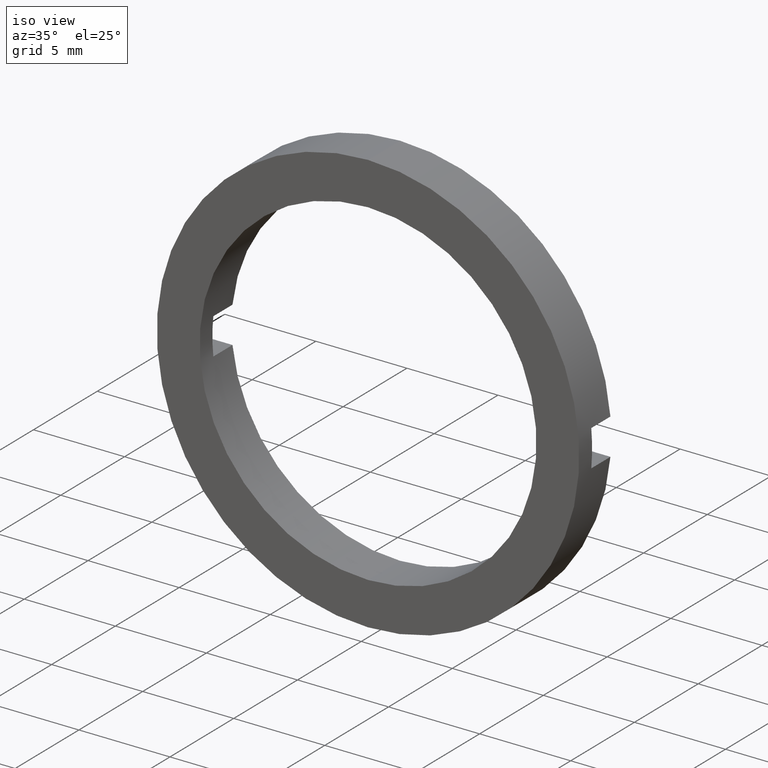
[diagram: clean part render]
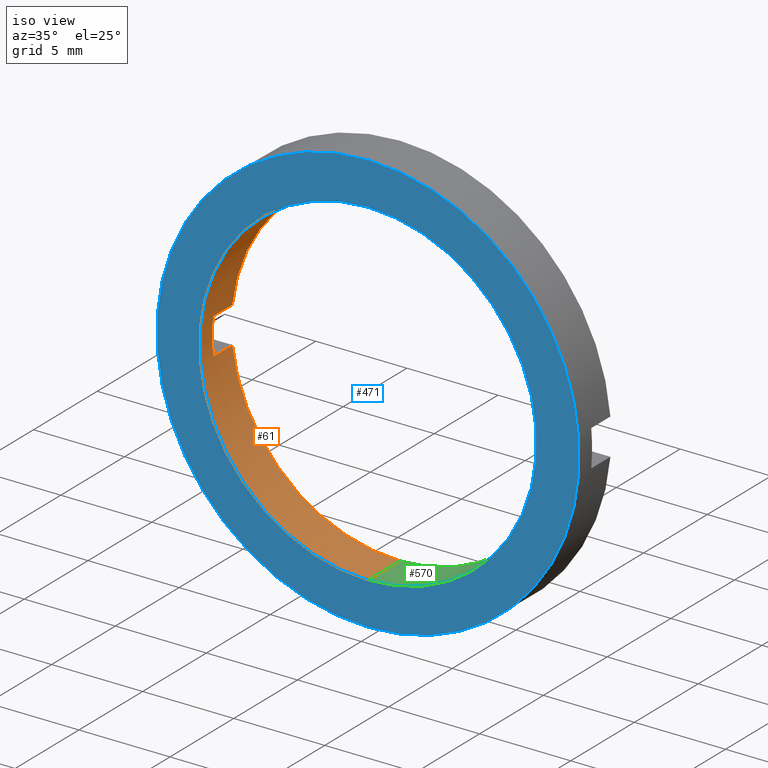
[diagram: same view with three faces highlighted in distinct colors, each labeled with its STEP entity id]
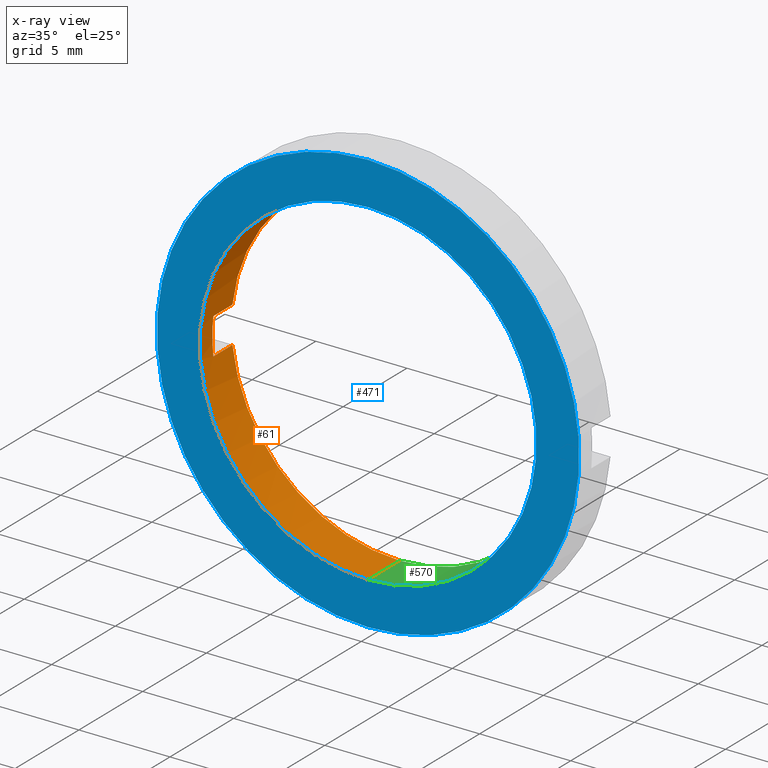
[diagram: x-ray of the same camera — body ghosted, the three highlighted faces saturated]
A machine part, iso view with three faces highlighted in distinct colors.
The next image is the same camera in x-ray (body ghosted, the three faces saturated) — at least one of them is partly hidden behind the body in this view.
Their STEP definitions:

[orange] entity #61 — the highlighted cylindrical surface (partial cylindrical patch) has radius 9.25 mm, axis along (-0, 1, -0).
#38 = LINE ( 'NONE', #139, #272 ) ;
#39 = CARTESIAN_POINT ( 'NONE',  ( 0.0000000000000000000, 56.26084262701361600, 9.250000000000007100 ) ) ;
#40 = EDGE_CURVE ( 'NONE', #486, #391, #38, .T. ) ;
#45 = DIRECTION ( 'NONE',  ( 0.0000000000000000000, -1.000000000000000000, 0.0000000000000000000 ) ) ;
#47 = AXIS2_PLACEMENT_3D ( 'NONE', #119, #536, #586 ) ;
#49 = FACE_OUTER_BOUND ( 'NONE', #504, .T. ) ;
#52 = EDGE_CURVE ( 'NONE', #486, #449, #394, .T. ) ;
#61 = ADVANCED_FACE ( 'NONE', ( #49 ), #352, .F. ) ;
#71 = DIRECTION ( 'NONE',  ( -0.0000000000000000000, 1.000000000000000000, -0.0000000000000000000 ) ) ;
#78 = LINE ( 'NONE', #39, #306 ) ;
#84 = VERTEX_POINT ( 'NONE', #423 ) ;
#103 = VERTEX_POINT ( 'NONE', #257 ) ;
#106 = CIRCLE ( 'NONE', #407, 9.250000000000007100 ) ;
#113 = DIRECTION ( 'NONE',  ( -0.0000000000000000000, 1.000000000000000000, -0.0000000000000000000 ) ) ;
#118 = CARTESIAN_POINT ( 'NONE',  ( 0.0000000000000000000, -1.964249787179434000, 0.0000000000000000000 ) ) ;
#119 = CARTESIAN_POINT ( 'NONE',  ( 0.0000000000000000000, -1.964249787179434000, 0.0000000000000000000 ) ) ;
#131 = LINE ( 'NONE', #398, #507 ) ;
#134 = AXIS2_PLACEMENT_3D ( 'NONE', #296, #113, #198 ) ;
#139 = CARTESIAN_POINT ( 'NONE',  ( -9.195787078874767300, 56.26084262701361600, 1.000000000000000000 ) ) ;
#147 = CARTESIAN_POINT ( 'NONE',  ( 0.0000000000000000000, -3.464249787179428400, 0.0000000000000000000 ) ) ;
#150 = CARTESIAN_POINT ( 'NONE',  ( -9.195787078874765500, -1.964249787179434000, -0.9999999999999995600 ) ) ;
#152 = EDGE_CURVE ( 'NONE', #391, #84, #106, .T. ) ;
#153 = DIRECTION ( 'NONE',  ( 0.0000000000000000000, 0.0000000000000000000, 1.000000000000000000 ) ) ;
#157 = DIRECTION ( 'NONE',  ( -0.0000000000000000000, -1.000000000000000000, -0.0000000000000000000 ) ) ;
#158 = CARTESIAN_POINT ( 'NONE',  ( 1.132798289211302500E-015, -1.964249787179434000, -9.250000000000007100 ) ) ;
#159 = CIRCLE ( 'NONE', #47, 9.250000000000007100 ) ;
#166 = CARTESIAN_POINT ( 'NONE',  ( 1.132798289211302500E-015, 56.26084262701361600, -9.250000000000007100 ) ) ;
#184 = VERTEX_POINT ( 'NONE', #302 ) ;
#190 = EDGE_CURVE ( 'NONE', #103, #234, #451, .T. ) ;
#198 = DIRECTION ( 'NONE',  ( 0.0000000000000000000, 0.0000000000000000000, 1.000000000000000000 ) ) ;
#200 = CARTESIAN_POINT ( 'NONE',  ( -9.195787078874765500, -1.964249787179434000, 0.9999999999999995600 ) ) ;
#209 = DIRECTION ( 'NONE',  ( 0.0000000000000000000, 0.0000000000000000000, 1.000000000000000000 ) ) ;
#214 = DIRECTION ( 'NONE',  ( -0.0000000000000000000, 1.000000000000000000, -0.0000000000000000000 ) ) ;
#234 = VERTEX_POINT ( 'NONE', #158 ) ;
#257 = CARTESIAN_POINT ( 'NONE',  ( 1.132798289211302500E-015, -4.464249787179428900, -9.250000000000007100 ) ) ;
#260 = DIRECTION ( 'NONE',  ( -0.0000000000000000000, 1.000000000000000000, -0.0000000000000000000 ) ) ;
#272 = VECTOR ( 'NONE', #71, 1000.000000000000000 ) ;
#293 = DIRECTION ( 'NONE',  ( -0.0000000000000000000, 1.000000000000000000, -0.0000000000000000000 ) ) ;
#296 = CARTESIAN_POINT ( 'NONE',  ( 0.0000000000000000000, -4.464249787179428900, 0.0000000000000000000 ) ) ;
#300 = AXIS2_PLACEMENT_3D ( 'NONE', #147, #157, #153 ) ;
#302 = CARTESIAN_POINT ( 'NONE',  ( 0.0000000000000000000, -4.464249787179428900, 9.250000000000007100 ) ) ;
#304 = ORIENTED_EDGE ( 'NONE', *, *, #492, .F. ) ;
#306 = VECTOR ( 'NONE', #260, 1000.000000000000000 ) ;
#316 = ORIENTED_EDGE ( 'NONE', *, *, #152, .T. ) ;
#342 = EDGE_CURVE ( 'NONE', #103, #184, #544, .T. ) ;
#352 = CYLINDRICAL_SURFACE ( 'NONE', #416, 9.250000000000007100 ) ;
#353 = DIRECTION ( 'NONE',  ( 0.0000000000000000000, 0.0000000000000000000, 1.000000000000000000 ) ) ;
#354 = CARTESIAN_POINT ( 'NONE',  ( -9.195787078874765500, -3.464249787179428400, 0.9999999999999995600 ) ) ;
#377 = ORIENTED_EDGE ( 'NONE', *, *, #589, .T. ) ;
#391 = VERTEX_POINT ( 'NONE', #200 ) ;
#394 = CIRCLE ( 'NONE', #300, 9.250000000000007100 ) ;
#398 = CARTESIAN_POINT ( 'NONE',  ( -9.195787078874767300, 56.26084262701361600, -1.000000000000000000 ) ) ;
#407 = AXIS2_PLACEMENT_3D ( 'NONE', #118, #214, #353 ) ;
#408 = ORIENTED_EDGE ( 'NONE', *, *, #40, .T. ) ;
#416 = AXIS2_PLACEMENT_3D ( 'NONE', #419, #475, #209 ) ;
#419 = CARTESIAN_POINT ( 'NONE',  ( 0.0000000000000000000, 56.26084262701361600, 0.0000000000000000000 ) ) ;
#421 = CARTESIAN_POINT ( 'NONE',  ( -9.195787078874765500, -3.464249787179428400, -0.9999999999999995600 ) ) ;
#423 = CARTESIAN_POINT ( 'NONE',  ( 0.0000000000000000000, -1.964249787179434000, 9.250000000000007100 ) ) ;
#434 = VERTEX_POINT ( 'NONE', #150 ) ;
#439 = ORIENTED_EDGE ( 'NONE', *, *, #52, .F. ) ;
#449 = VERTEX_POINT ( 'NONE', #421 ) ;
#450 = ORIENTED_EDGE ( 'NONE', *, *, #342, .F. ) ;
#451 = LINE ( 'NONE', #166, #561 ) ;
#475 = DIRECTION ( 'NONE',  ( -0.0000000000000000000, 1.000000000000000000, -0.0000000000000000000 ) ) ;
#486 = VERTEX_POINT ( 'NONE', #354 ) ;
#492 = EDGE_CURVE ( 'NONE', #184, #84, #78, .T. ) ;
#504 = EDGE_LOOP ( 'NONE', ( #450, #568, #525, #377, #439, #408, #316, #304 ) ) ;
#507 = VECTOR ( 'NONE', #45, 1000.000000000000000 ) ;
#525 = ORIENTED_EDGE ( 'NONE', *, *, #555, .T. ) ;
#536 = DIRECTION ( 'NONE',  ( -0.0000000000000000000, 1.000000000000000000, -0.0000000000000000000 ) ) ;
#544 = CIRCLE ( 'NONE', #134, 9.250000000000007100 ) ;
#555 = EDGE_CURVE ( 'NONE', #234, #434, #159, .T. ) ;
#561 = VECTOR ( 'NONE', #293, 1000.000000000000000 ) ;
#568 = ORIENTED_EDGE ( 'NONE', *, *, #190, .T. ) ;
#586 = DIRECTION ( 'NONE',  ( 0.0000000000000000000, 0.0000000000000000000, 1.000000000000000000 ) ) ;
#589 = EDGE_CURVE ( 'NONE', #434, #449, #131, .T. ) ;

[blue] entity #471 — the highlighted planar face has unit normal (-0, 1, 0).
#15 = ORIENTED_EDGE ( 'NONE', *, *, #208, .F. ) ;
#36 = CARTESIAN_POINT ( 'NONE',  ( 9.250000000000007100, -4.464249787179429800, 0.0000000000000000000 ) ) ;
#70 = CARTESIAN_POINT ( 'NONE',  ( 0.0000000000000000000, -4.464249787179428900, 11.60000000000000700 ) ) ;
#77 = DIRECTION ( 'NONE',  ( 0.0000000000000000000, 0.0000000000000000000, 1.000000000000000000 ) ) ;
#80 = CARTESIAN_POINT ( 'NONE',  ( 0.0000000000000000000, -4.464249787179428900, 0.0000000000000000000 ) ) ;
#102 = DIRECTION ( 'NONE',  ( 0.0000000000000000000, 0.0000000000000000000, 1.000000000000000000 ) ) ;
#103 = VERTEX_POINT ( 'NONE', #257 ) ;
#113 = DIRECTION ( 'NONE',  ( -0.0000000000000000000, 1.000000000000000000, -0.0000000000000000000 ) ) ;
#114 = EDGE_LOOP ( 'NONE', ( #405, #15 ) ) ;
#117 = CIRCLE ( 'NONE', #572, 11.60000000000000700 ) ;
#122 = PLANE ( 'NONE',  #129 ) ;
#129 = AXIS2_PLACEMENT_3D ( 'NONE', #36, #309, #77 ) ;
#134 = AXIS2_PLACEMENT_3D ( 'NONE', #296, #113, #198 ) ;
#168 = VERTEX_POINT ( 'NONE', #521 ) ;
#176 = FACE_BOUND ( 'NONE', #511, .T. ) ;
#178 = EDGE_CURVE ( 'NONE', #184, #103, #587, .T. ) ;
#181 = AXIS2_PLACEMENT_3D ( 'NONE', #80, #308, #258 ) ;
#184 = VERTEX_POINT ( 'NONE', #302 ) ;
#198 = DIRECTION ( 'NONE',  ( 0.0000000000000000000, 0.0000000000000000000, 1.000000000000000000 ) ) ;
#208 = EDGE_CURVE ( 'NONE', #168, #305, #117, .T. ) ;
#257 = CARTESIAN_POINT ( 'NONE',  ( 1.132798289211302500E-015, -4.464249787179428900, -9.250000000000007100 ) ) ;
#258 = DIRECTION ( 'NONE',  ( 0.0000000000000000000, 0.0000000000000000000, 1.000000000000000000 ) ) ;
#296 = CARTESIAN_POINT ( 'NONE',  ( 0.0000000000000000000, -4.464249787179428900, 0.0000000000000000000 ) ) ;
#302 = CARTESIAN_POINT ( 'NONE',  ( 0.0000000000000000000, -4.464249787179428900, 9.250000000000007100 ) ) ;
#305 = VERTEX_POINT ( 'NONE', #70 ) ;
#308 = DIRECTION ( 'NONE',  ( -0.0000000000000000000, 1.000000000000000000, -0.0000000000000000000 ) ) ;
#309 = DIRECTION ( 'NONE',  ( -0.0000000000000000000, 1.000000000000000000, 0.0000000000000000000 ) ) ;
#342 = EDGE_CURVE ( 'NONE', #103, #184, #544, .T. ) ;
#359 = CIRCLE ( 'NONE', #181, 11.60000000000000700 ) ;
#378 = CARTESIAN_POINT ( 'NONE',  ( 0.0000000000000000000, -4.464249787179428900, 0.0000000000000000000 ) ) ;
#385 = DIRECTION ( 'NONE',  ( -0.0000000000000000000, 1.000000000000000000, -0.0000000000000000000 ) ) ;
#405 = ORIENTED_EDGE ( 'NONE', *, *, #505, .F. ) ;
#406 = FACE_OUTER_BOUND ( 'NONE', #114, .T. ) ;
#415 = ORIENTED_EDGE ( 'NONE', *, *, #178, .T. ) ;
#471 = ADVANCED_FACE ( 'NONE', ( #406, #176 ), #122, .F. ) ;
#483 = DIRECTION ( 'NONE',  ( -0.0000000000000000000, 1.000000000000000000, -0.0000000000000000000 ) ) ;
#505 = EDGE_CURVE ( 'NONE', #305, #168, #359, .T. ) ;
#511 = EDGE_LOOP ( 'NONE', ( #415, #553 ) ) ;
#521 = CARTESIAN_POINT ( 'NONE',  ( 1.420590287010930300E-015, -4.464249787179428900, -11.60000000000000700 ) ) ;
#528 = CARTESIAN_POINT ( 'NONE',  ( 0.0000000000000000000, -4.464249787179428900, 0.0000000000000000000 ) ) ;
#544 = CIRCLE ( 'NONE', #134, 9.250000000000007100 ) ;
#553 = ORIENTED_EDGE ( 'NONE', *, *, #342, .T. ) ;
#556 = AXIS2_PLACEMENT_3D ( 'NONE', #528, #483, #581 ) ;
#572 = AXIS2_PLACEMENT_3D ( 'NONE', #378, #385, #102 ) ;
#581 = DIRECTION ( 'NONE',  ( 0.0000000000000000000, 0.0000000000000000000, 1.000000000000000000 ) ) ;
#587 = CIRCLE ( 'NONE', #556, 9.250000000000007100 ) ;

[green] entity #570 — the highlighted cylindrical surface (partial cylindrical patch) has radius 9.25 mm, axis along (-0, 1, -0).
#2 = DIRECTION ( 'NONE',  ( 0.0000000000000000000, 0.0000000000000000000, 1.000000000000000000 ) ) ;
#9 = ORIENTED_EDGE ( 'NONE', *, *, #452, .T. ) ;
#22 = DIRECTION ( 'NONE',  ( -0.0000000000000000000, -1.000000000000000000, -0.0000000000000000000 ) ) ;
#25 = CARTESIAN_POINT ( 'NONE',  ( 9.195787078874765500, -1.964249787179434000, 0.9999999999999995600 ) ) ;
#29 = DIRECTION ( 'NONE',  ( 0.0000000000000000000, -1.000000000000000000, 0.0000000000000000000 ) ) ;
#30 = VECTOR ( 'NONE', #29, 1000.000000000000000 ) ;
#39 = CARTESIAN_POINT ( 'NONE',  ( 0.0000000000000000000, 56.26084262701361600, 9.250000000000007100 ) ) ;
#51 = DIRECTION ( 'NONE',  ( -0.0000000000000000000, 1.000000000000000000, -0.0000000000000000000 ) ) ;
#62 = DIRECTION ( 'NONE',  ( -0.0000000000000000000, 1.000000000000000000, -0.0000000000000000000 ) ) ;
#66 = CARTESIAN_POINT ( 'NONE',  ( 9.195787078874767300, 56.26084262701361600, 1.000000000000000000 ) ) ;
#76 = VERTEX_POINT ( 'NONE', #253 ) ;
#78 = LINE ( 'NONE', #39, #306 ) ;
#84 = VERTEX_POINT ( 'NONE', #423 ) ;
#87 = EDGE_CURVE ( 'NONE', #84, #271, #447, .T. ) ;
#89 = ORIENTED_EDGE ( 'NONE', *, *, #492, .T. ) ;
#103 = VERTEX_POINT ( 'NONE', #257 ) ;
#105 = CARTESIAN_POINT ( 'NONE',  ( 9.195787078874767300, 56.26084262701361600, -1.000000000000000000 ) ) ;
#109 = DIRECTION ( 'NONE',  ( -0.0000000000000000000, 1.000000000000000000, -0.0000000000000000000 ) ) ;
#142 = EDGE_CURVE ( 'NONE', #271, #177, #399, .T. ) ;
#158 = CARTESIAN_POINT ( 'NONE',  ( 1.132798289211302500E-015, -1.964249787179434000, -9.250000000000007100 ) ) ;
#160 = CARTESIAN_POINT ( 'NONE',  ( 0.0000000000000000000, -1.964249787179434000, 0.0000000000000000000 ) ) ;
#163 = CARTESIAN_POINT ( 'NONE',  ( 9.195787078874765500, -3.464249787179428400, -0.9999999999999995600 ) ) ;
#166 = CARTESIAN_POINT ( 'NONE',  ( 1.132798289211302500E-015, 56.26084262701361600, -9.250000000000007100 ) ) ;
#167 = DIRECTION ( 'NONE',  ( -5.329070518200750600E-015, 0.0000000000000000000, 1.000000000000000000 ) ) ;
#170 = CYLINDRICAL_SURFACE ( 'NONE', #372, 9.250000000000007100 ) ;
#175 = CARTESIAN_POINT ( 'NONE',  ( 0.0000000000000000000, 56.26084262701361600, 0.0000000000000000000 ) ) ;
#177 = VERTEX_POINT ( 'NONE', #248 ) ;
#178 = EDGE_CURVE ( 'NONE', #184, #103, #587, .T. ) ;
#184 = VERTEX_POINT ( 'NONE', #302 ) ;
#189 = VERTEX_POINT ( 'NONE', #163 ) ;
#190 = EDGE_CURVE ( 'NONE', #103, #234, #451, .T. ) ;
#204 = DIRECTION ( 'NONE',  ( 0.0000000000000000000, 0.0000000000000000000, 1.000000000000000000 ) ) ;
#225 = AXIS2_PLACEMENT_3D ( 'NONE', #284, #22, #167 ) ;
#234 = VERTEX_POINT ( 'NONE', #158 ) ;
#248 = CARTESIAN_POINT ( 'NONE',  ( 9.195787078874765500, -3.464249787179428400, 0.9999999999999995600 ) ) ;
#253 = CARTESIAN_POINT ( 'NONE',  ( 9.195787078874765500, -1.964249787179434000, -0.9999999999999995600 ) ) ;
#257 = CARTESIAN_POINT ( 'NONE',  ( 1.132798289211302500E-015, -4.464249787179428900, -9.250000000000007100 ) ) ;
#260 = DIRECTION ( 'NONE',  ( -0.0000000000000000000, 1.000000000000000000, -0.0000000000000000000 ) ) ;
#271 = VERTEX_POINT ( 'NONE', #25 ) ;
#274 = EDGE_CURVE ( 'NONE', #76, #234, #313, .T. ) ;
#284 = CARTESIAN_POINT ( 'NONE',  ( 0.0000000000000000000, -3.464249787179428400, 0.0000000000000000000 ) ) ;
#293 = DIRECTION ( 'NONE',  ( -0.0000000000000000000, 1.000000000000000000, -0.0000000000000000000 ) ) ;
#302 = CARTESIAN_POINT ( 'NONE',  ( 0.0000000000000000000, -4.464249787179428900, 9.250000000000007100 ) ) ;
#306 = VECTOR ( 'NONE', #260, 1000.000000000000000 ) ;
#312 = ORIENTED_EDGE ( 'NONE', *, *, #87, .T. ) ;
#313 = CIRCLE ( 'NONE', #381, 9.250000000000007100 ) ;
#344 = AXIS2_PLACEMENT_3D ( 'NONE', #160, #109, #204 ) ;
#364 = EDGE_LOOP ( 'NONE', ( #537, #535, #89, #312, #457, #369, #9, #404 ) ) ;
#369 = ORIENTED_EDGE ( 'NONE', *, *, #425, .F. ) ;
#372 = AXIS2_PLACEMENT_3D ( 'NONE', #175, #51, #2 ) ;
#374 = FACE_OUTER_BOUND ( 'NONE', #364, .T. ) ;
#380 = DIRECTION ( 'NONE',  ( 0.0000000000000000000, 0.0000000000000000000, 1.000000000000000000 ) ) ;
#381 = AXIS2_PLACEMENT_3D ( 'NONE', #575, #62, #380 ) ;
#399 = LINE ( 'NONE', #66, #30 ) ;
#404 = ORIENTED_EDGE ( 'NONE', *, *, #274, .T. ) ;
#418 = VECTOR ( 'NONE', #433, 1000.000000000000000 ) ;
#423 = CARTESIAN_POINT ( 'NONE',  ( 0.0000000000000000000, -1.964249787179434000, 9.250000000000007100 ) ) ;
#425 = EDGE_CURVE ( 'NONE', #189, #177, #503, .T. ) ;
#433 = DIRECTION ( 'NONE',  ( -0.0000000000000000000, 1.000000000000000000, -0.0000000000000000000 ) ) ;
#447 = CIRCLE ( 'NONE', #344, 9.250000000000007100 ) ;
#451 = LINE ( 'NONE', #166, #561 ) ;
#452 = EDGE_CURVE ( 'NONE', #189, #76, #549, .T. ) ;
#457 = ORIENTED_EDGE ( 'NONE', *, *, #142, .T. ) ;
#483 = DIRECTION ( 'NONE',  ( -0.0000000000000000000, 1.000000000000000000, -0.0000000000000000000 ) ) ;
#492 = EDGE_CURVE ( 'NONE', #184, #84, #78, .T. ) ;
#503 = CIRCLE ( 'NONE', #225, 9.250000000000007100 ) ;
#528 = CARTESIAN_POINT ( 'NONE',  ( 0.0000000000000000000, -4.464249787179428900, 0.0000000000000000000 ) ) ;
#535 = ORIENTED_EDGE ( 'NONE', *, *, #178, .F. ) ;
#537 = ORIENTED_EDGE ( 'NONE', *, *, #190, .F. ) ;
#549 = LINE ( 'NONE', #105, #418 ) ;
#556 = AXIS2_PLACEMENT_3D ( 'NONE', #528, #483, #581 ) ;
#561 = VECTOR ( 'NONE', #293, 1000.000000000000000 ) ;
#570 = ADVANCED_FACE ( 'NONE', ( #374 ), #170, .F. ) ;
#575 = CARTESIAN_POINT ( 'NONE',  ( 0.0000000000000000000, -1.964249787179434000, 0.0000000000000000000 ) ) ;
#581 = DIRECTION ( 'NONE',  ( 0.0000000000000000000, 0.0000000000000000000, 1.000000000000000000 ) ) ;
#587 = CIRCLE ( 'NONE', #556, 9.250000000000007100 ) ;